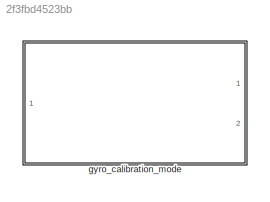
MODEL slx_2f3fbd4523bb
KIND library
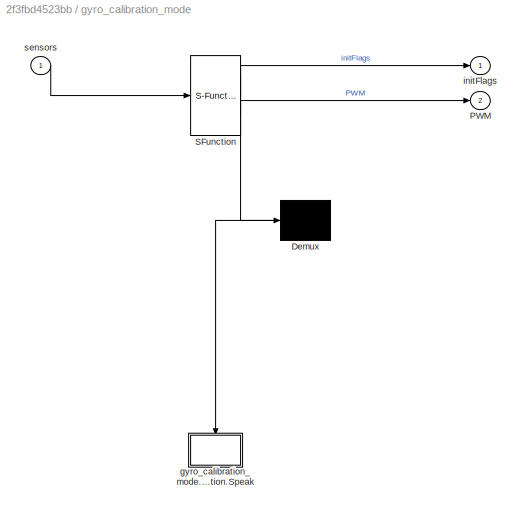
BLOCK [SubSystem] gyro_calibration_mode
  DSMNames = current_task_operation_status
  DSMValues = current_mode_status
  ErrorFcn = Stateflow.Translate.translate
  PermitHierarchicalResolution = ExplicitOnly
  Ports = [1, 2]
  RequestExecContextInheritance = off
  SFBlockType = Chart
  TreatAsAtomicUnit = on
BLOCK [Demux] gyro_calibration_mode/ Demux 
  Outputs = 1
  Ports = [1, 1]
BLOCK [S-Function] gyro_calibration_mode/ SFunction 
  EnableBusSupport = off
  FunctionName = sf_sfun
  PortCounts = [1 3]
  Ports = [1, 3]
  Tag = Stateflow S-Function gyro_calibration_algorithm_atomic_sub_chart_library 7
BLOCK [Outport] gyro_calibration_mode/PWM
  IconDisplay = Port number
  Port = 2
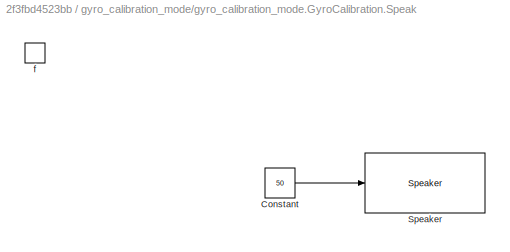
BLOCK [SubSystem] gyro_calibration_mode/gyro_calibration_mode.GyroCalibration.Speak
  Commented = on
  Ports = [0, 0, 0, 1]
  PreDeleteFcn = Stateflow.SLINSF.SimulinkMan.removePreDeleteFcn
  RequestExecContextInheritance = off
  UndoDeleteFcn = Stateflow.SLINSF.SimulinkMan.restorePreDeleteFcn
BLOCK [Constant] gyro_calibration_mode/gyro_calibration_mode.GyroCalibration.Speak/Constant
  Value = 50
BLOCK [Reference] gyro_calibration_mode/gyro_calibration_mode.GyroCalibration.Speak/Speaker  REF=legonxtlib/Speaker
  Ports = [1]
  SourceBlock = legonxtlib/Speaker
  SourceType = LEGO MINDSTORMS NXT Speaker
  blockPlatform = LegoMindstormsNXT
  sinputMode = Volume only
  sspeakerDuration = 100
  sspeakerFreq = 800
  sspeakerVolume = 50
BLOCK [TriggerPort] gyro_calibration_mode/gyro_calibration_mode.GyroCalibration.Speak/f
  CopyFcn = Stateflow.SLINSF.SimulinkMan.removeBlockPreDeleteFcn
  Ports = []
  PreDeleteFcn = Stateflow.SLINSF.SimulinkMan.unsafePredeleteFcn
  StatesWhenEnabling = held
  TriggerType = function-call
BLOCK [Outport] gyro_calibration_mode/initFlags
  IconDisplay = Port number
BLOCK [Inport] gyro_calibration_mode/sensors
  IconDisplay = Port number
CHART gyro_calibration_mode states=11 transitions=9
  STATE_LABEL 'gyro_calibration_mode'
  STATE_LABEL 'GyroCalibration\nentry:\ndesired_tail = single(0);\nduring, exit:\nPWM.tail = tail_controller(sensors.theta_T,desired_tail);'
  STATE_LABEL 'Waiting'
  STATE_LABEL 'MoveTailDown\nentry:\nStatusLCD(uint16(100));\nduring:\ndesired_tail = desired_tail + single(0.0075);\n'
  STATE_LABEL 'StartCalibration\nentry:\nStatusLCD(uint16(101));\ninitFlags.gyroInit = single(1);\ninitFlags.gyroReset = single(1);\ninitFlags.theta = single(1);'
  STATE_LABEL 'Wait\nentry: Speak;'
  STATE_LABEL 'MakeNoise\nduring: Speak;'
  STATE_LABEL 'StartCalibration1\nentry:\nStatusLCD(uint16(102));\ninitFlags.gyroInit = single(0);\ninitFlags.gyroReset = single(0);\ninitFlags.theta = single(0);'
  STATE_LABEL 'CalibComplete\nentry:\nStatusLCD(uint16(103));\ncurrent_task_operation_status = OperationModeStatusEnum.SUCCESSFULLY_COMPLETED;'
  STATE_LABEL 'Speak'
  STATE_LABEL 'after(1,sec)'
  STATE_LABEL '[desired_tail >= single(1.85) ]'
  STATE_LABEL '[sensors.touch]{Speak;}'
  STATE_LABEL 'after(5,sec)'
  STATE_LABEL 'after(0.5,sec)'
  STATE_LABEL 'StartCalibration'
  STATE_LABEL '[sensors.touch]'
  STATE_LABEL 'GyroCalibration\nentry:\ndesired_tail = single(0);\nduring, exit:\nPWM.tail = tail_controller(sensors.theta_T,desired_tail);'
  STATE_LABEL 'Waiting'
  STATE_LABEL 'MoveTailDown\nentry:\nStatusLCD(uint16(100));\nduring:\ndesired_tail = desired_tail + single(0.0075);\n'
  STATE_LABEL 'StartCalibration\nentry:\nStatusLCD(uint16(101));\ninitFlags.gyroInit = single(1);\ninitFlags.gyroReset = single(1);\ninitFlags.theta = single(1);'
  STATE_LABEL 'Wait\nentry: Speak;'
  STATE_LABEL 'MakeNoise\nduring: Speak;'
  STATE_LABEL 'StartCalibration1\nentry:\nStatusLCD(uint16(102));\ninitFlags.gyroInit = single(0);\ninitFlags.gyroReset = single(0);\ninitFlags.theta = single(0);'
  STATE_LABEL 'CalibComplete\nentry:\nStatusLCD(uint16(103));\ncurrent_task_operation_status = OperationModeStatusEnum.SUCCESSFULLY_COMPLETED;'
  STATE_LABEL 'Speak'
  STATE_LABEL 'after(1,sec)'
  STATE_LABEL '[desired_tail >= single(1.85) ]'
  STATE_LABEL '[sensors.touch]{Speak;}'
  STATE_LABEL 'after(5,sec)'
  STATE_LABEL 'after(0.5,sec)'
  STATE_LABEL 'Waiting'
  STATE_LABEL 'MoveTailDown\nentry:\nStatusLCD(uint16(100));\nduring:\ndesired_tail = desired_tail + single(0.0075);\n'
  STATE_LABEL 'StartCalibration\nentry:\nStatusLCD(uint16(101));\ninitFlags.gyroInit = single(1);\ninitFlags.gyroReset = single(1);\ninitFlags.theta = single(1);'
  STATE_LABEL 'Wait\nentry: Speak;'
  STATE_LABEL 'MakeNoise\nduring: Speak;'
  STATE_LABEL 'StartCalibration1\nentry:\nStatusLCD(uint16(102));\ninitFlags.gyroInit = single(0);\ninitFlags.gyroReset = single(0);\ninitFlags.theta = single(0);'
  STATE_LABEL 'CalibComplete\nentry:\nStatusLCD(uint16(103));\ncurrent_task_operation_status = OperationModeStatusEnum.SUCCESSFULLY_COMPLETED;'
  STATE_LABEL 'Speak'
  STATE_LABEL 'StartCalibration'
